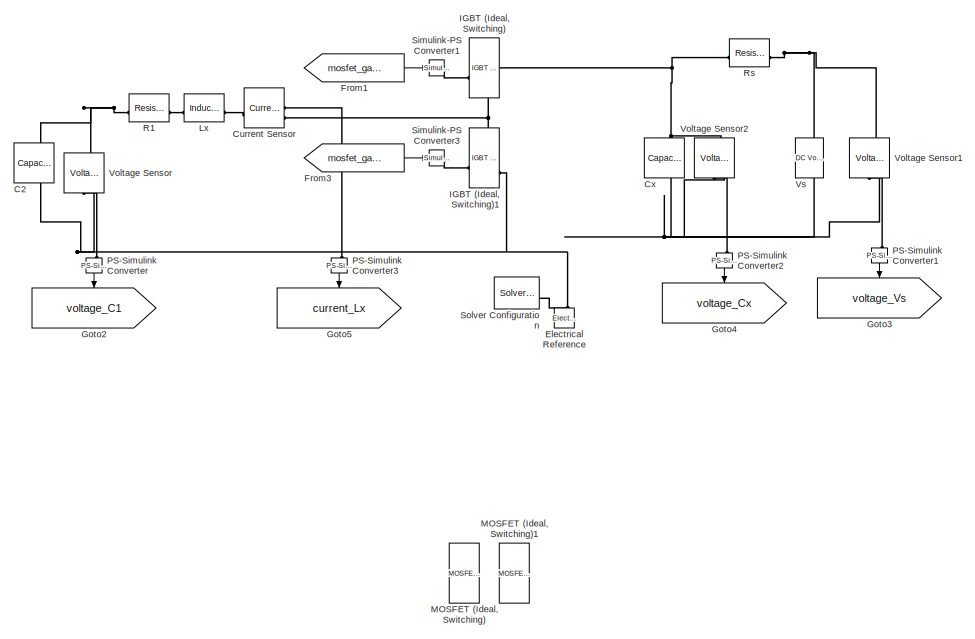
[diagram: root canvas - part 1/3, center side, full height]
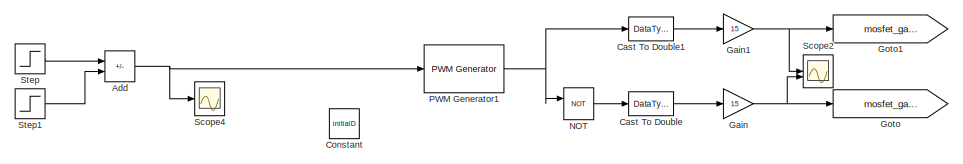
[diagram: root canvas - part 2/3, top left region]
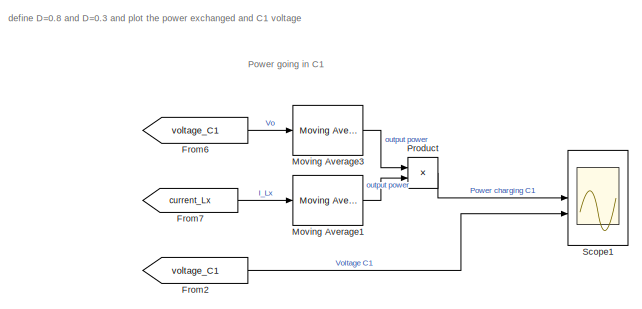
[diagram: root canvas - part 3/3, middle right region]
MODEL slx_b8bf80a27d0d
KIND model
CONFIG AbsTol = auto
CONFIG EnableMultiTasking = off
CONFIG FixedStep = auto
CONFIG MaxStep = auto
CONFIG MinStep = auto
CONFIG RelTol = 1e-3
CONFIG SampleTimeConstraint = Unconstrained
CONFIG SolverName = VariableStepAuto
CONFIG StartTime = 0.0
CONFIG StopTime = sim_time
BLOCK [Sum] Add
  IconShape = rectangular
  Inputs = +-
BLOCK [Reference] C2  REF=fl_lib/Electrical/Electrical Elements/Capacitor
  NameLocation = left
  SourceBlock = fl_lib/Electrical/Electrical Elements/Capacitor
  SourceType = Capacitor
BLOCK [DataTypeConversion] Cast To Double
  OutDataTypeStr = double
  RndMeth = Floor
  SaturateOnIntegerOverflow = off
BLOCK [DataTypeConversion] Cast To Double1
  OutDataTypeStr = double
  RndMeth = Floor
  SaturateOnIntegerOverflow = off
BLOCK [Constant] Constant
  Value = initialD
BLOCK [Reference] Current Sensor  REF=fl_lib/Electrical/Electrical Sensors/Current Sensor
  SourceBlock = fl_lib/Electrical/Electrical Sensors/Current Sensor
  SourceType = Current Sensor
BLOCK [Reference] Cx  REF=fl_lib/Electrical/Electrical Elements/Capacitor
  NameLocation = left
  SourceBlock = fl_lib/Electrical/Electrical Elements/Capacitor
  SourceType = Capacitor
BLOCK [Reference] Electrical Reference  REF=fl_lib/Electrical/Electrical Elements/Electrical Reference
  NameLocation = right
  SourceBlock = fl_lib/Electrical/Electrical Elements/Electrical Reference
  SourceType = Electrical Reference
BLOCK [From] From1
  GotoTag = mosfet_gate_1
BLOCK [From] From2
  GotoTag = voltage_C1
BLOCK [From] From3
  GotoTag = mosfet_gate_2
BLOCK [From] From6
  GotoTag = voltage_C1
BLOCK [From] From7
  GotoTag = current_Lx
BLOCK [Gain] Gain
  Gain = 15
BLOCK [Gain] Gain1
  Gain = 15
BLOCK [Goto] Goto
  GotoTag = mosfet_gate_2
BLOCK [Goto] Goto1
  GotoTag = mosfet_gate_1
BLOCK [Goto] Goto2
  GotoTag = voltage_C1
  NameLocation = left
BLOCK [Goto] Goto3
  GotoTag = voltage_Vs
  NameLocation = left
BLOCK [Goto] Goto4
  GotoTag = voltage_Cx
  NameLocation = left
BLOCK [Goto] Goto5
  GotoTag = current_Lx
  NameLocation = left
BLOCK [Reference] IGBT (Ideal, Switching)  REF=ee_lib/Semiconductors &
Converters/IGBT
(Ideal,
Switching)
  SourceBlock = ee_lib/Semiconductors &\nConverters/IGBT\n(Ideal,\nSwitching)
  SourceType = IGBT\n(Ideal,\nSwitching)
BLOCK [Reference] IGBT (Ideal, Switching)1  REF=ee_lib/Semiconductors &
Converters/IGBT
(Ideal,
Switching)
  SourceBlock = ee_lib/Semiconductors &\nConverters/IGBT\n(Ideal,\nSwitching)
  SourceType = IGBT\n(Ideal,\nSwitching)
BLOCK [Reference] Lx  REF=fl_lib/Electrical/Electrical Elements/Inductor
  NameLocation = top
  SourceBlock = fl_lib/Electrical/Electrical Elements/Inductor
  SourceType = Inductor
BLOCK [Reference] MOSFET (Ideal, Switching)  REF=ee_lib/Semiconductors &
Converters/MOSFET
(Ideal,
Switching)
  SourceBlock = ee_lib/Semiconductors &\nConverters/MOSFET\n(Ideal,\nSwitching)
  SourceType = MOSFET\n(Ideal,\nSwitching)
BLOCK [Reference] MOSFET (Ideal, Switching)1  REF=ee_lib/Semiconductors &
Converters/MOSFET
(Ideal,
Switching)
  SourceBlock = ee_lib/Semiconductors &\nConverters/MOSFET\n(Ideal,\nSwitching)
  SourceType = MOSFET\n(Ideal,\nSwitching)
BLOCK [Reference] Moving Average1  REF=eeGeneralControl/Moving Average
  LibrarySourceBlock = ee_sl_lib/General Control/Moving Average
  SourceBlock = eeGeneralControl/Moving Average
  SourceType = Moving Average
BLOCK [Reference] Moving Average3  REF=eeGeneralControl/Moving Average
  LibrarySourceBlock = ee_sl_lib/General Control/Moving Average
  SourceBlock = eeGeneralControl/Moving Average
  SourceType = Moving Average
BLOCK [Logic] NOT
  AllPortsSameDT = off
  IconShape = distinctive
  Operator = NOT
  OutDataTypeStr = boolean
BLOCK [Reference] PS-Simulink Converter  REF=nesl_utility/PS-Simulink
Converter
  NameLocation = left
  SourceBlock = nesl_utility/PS-Simulink\nConverter
  SourceType = PS-Simulink\nConverter
BLOCK [Reference] PS-Simulink Converter1  REF=nesl_utility/PS-Simulink
Converter
  NameLocation = left
  SourceBlock = nesl_utility/PS-Simulink\nConverter
  SourceType = PS-Simulink\nConverter
BLOCK [Reference] PS-Simulink Converter2  REF=nesl_utility/PS-Simulink
Converter
  NameLocation = left
  SourceBlock = nesl_utility/PS-Simulink\nConverter
  SourceType = PS-Simulink\nConverter
BLOCK [Reference] PS-Simulink Converter3  REF=nesl_utility/PS-Simulink
Converter
  NameLocation = left
  SourceBlock = nesl_utility/PS-Simulink\nConverter
  SourceType = PS-Simulink\nConverter
BLOCK [Reference] PWM Generator1  REF=eePwmGenerator/PWM Generator
  LibrarySourceBlock = ee_sl_lib/Pulse Width\nModulation/PWM Generator
  SourceBlock = eePwmGenerator/PWM Generator
  SourceType = PWM Generator
BLOCK [Product] Product
BLOCK [Reference] R1  REF=fl_lib/Electrical/Electrical Elements/Resistor
  NameLocation = top
  SourceBlock = fl_lib/Electrical/Electrical Elements/Resistor
  SourceType = Resistor
BLOCK [Reference] Rs  REF=fl_lib/Electrical/Electrical Elements/Resistor
  NameLocation = top
  SourceBlock = fl_lib/Electrical/Electrical Elements/Resistor
  SourceType = Resistor
BLOCK [Scope] Scope1
  Floating = off
  NumInputPorts = 2
  ScopeSpecificationString = Simulink.scopes.TimeScopeBlockCfg('CurrentConfiguration', extmgr.ConfigurationSet(extmgr.Configuration('Core','General UI',true),extmgr.Configuration('Core','Source UI',true),extmgr.Configuration('Sources','WiredSimulink',true,'DataLoggingVariableName','ScopeData2'),extmgr.Configuration('Visuals','Time Domain',true,'SerializedDisplays',{struct('MinYLimReal','-48476631.03656','MaxYLimReal','7072153...<+2096ch>
BLOCK [Scope] Scope2
  Floating = off
  NumInputPorts = 2
  ScopeSpecificationString = Simulink.scopes.TimeScopeBlockCfg('CurrentConfiguration', extmgr.ConfigurationSet(extmgr.Configuration('Core','General UI',true),extmgr.Configuration('Core','Source UI',true),extmgr.Configuration('Sources','WiredSimulink',true,'DataLoggingVariableName','ScopeData2'),extmgr.Configuration('Visuals','Time Domain',true,'SerializedDisplays',{struct('MinYLimReal','-0.625','MaxYLimReal','5.625','YLabelRe...<+2118ch>
BLOCK [Scope] Scope4
  Floating = off
  NumInputPorts = 1
  ScopeSpecificationString = Simulink.scopes.TimeScopeBlockCfg('CurrentConfiguration', extmgr.ConfigurationSet(extmgr.Configuration('Core','General UI',true),extmgr.Configuration('Core','Source UI',true),extmgr.Configuration('Sources','WiredSimulink',true,'DataLoggingVariableName','ScopeData3'),extmgr.Configuration('Visuals','Time Domain',true,'SerializedDisplays',{struct('MinYLimReal','0.2375','MaxYLimReal','0.8625','YLabelR...<+1502ch>
BLOCK [Reference] Simulink-PS Converter1  REF=nesl_utility/Simulink-PS
Converter
  SourceBlock = nesl_utility/Simulink-PS\nConverter
  SourceType = Simulink-PS\nConverter
BLOCK [Reference] Simulink-PS Converter3  REF=nesl_utility/Simulink-PS
Converter
  SourceBlock = nesl_utility/Simulink-PS\nConverter
  SourceType = Simulink-PS\nConverter
BLOCK [Reference] Solver Configuration  REF=nesl_utility/Solver
Configuration
  SourceBlock = nesl_utility/Solver\nConfiguration
  SourceType = Solver\nConfiguration
BLOCK [Step] Step
  After = firstD
  Before = initialD
  SampleTime = 0
  Time = first_step_time
BLOCK [Step] Step1
  After = firstD-secondD
  SampleTime = 0
  Time = second_step_time
BLOCK [Reference] Voltage Sensor  REF=fl_lib/Electrical/Electrical Sensors/Voltage Sensor
  NameLocation = left
  SourceBlock = fl_lib/Electrical/Electrical Sensors/Voltage Sensor
  SourceType = Voltage Sensor
BLOCK [Reference] Voltage Sensor1  REF=fl_lib/Electrical/Electrical Sensors/Voltage Sensor
  NameLocation = left
  SourceBlock = fl_lib/Electrical/Electrical Sensors/Voltage Sensor
  SourceType = Voltage Sensor
BLOCK [Reference] Voltage Sensor2  REF=fl_lib/Electrical/Electrical Sensors/Voltage Sensor
  NameLocation = left
  SourceBlock = fl_lib/Electrical/Electrical Sensors/Voltage Sensor
  SourceType = Voltage Sensor
BLOCK [Reference] Vs  REF=fl_lib/Electrical/Electrical Sources/DC Voltage Source
  NameLocation = right
  SourceBlock = fl_lib/Electrical/Electrical Sources/DC Voltage Source
  SourceType = DC Voltage Source
ANNOTATION (root): Power going in C1
ANNOTATION (root): define D=0.8 and D=0.3 and plot the power exchanged and C1 voltage
NET Add:1 -> PWM Generator1:1, Scope4:1
LINE Cast To Double1:1 -> Gain1:1
LINE Cast To Double:1 -> Gain:1
LINE From1:1 -> Simulink-PS Converter1:1
LINE From2:1 -> Scope1:2
LINE From3:1 -> Simulink-PS Converter3:1
LINE From6:1 -> Moving Average3:1
LINE From7:1 -> Moving Average1:1
NET Gain1:1 -> Goto1:1, Scope2:1
NET Gain:1 -> Goto:1, Scope2:2
LINE Moving Average1:1 -> Product:2
LINE Moving Average3:1 -> Product:1
LINE NOT:1 -> Cast To Double:1
LINE PS-Simulink Converter1:1 -> Goto3:1
LINE PS-Simulink Converter2:1 -> Goto4:1
LINE PS-Simulink Converter3:1 -> Goto5:1
LINE PS-Simulink Converter:1 -> Goto2:1
NET PWM Generator1:1 -> Cast To Double1:1, NOT:1
LINE Product:1 -> Scope1:1
LINE Step1:1 -> Add:2
LINE Step:1 -> Add:1
PNET net1: C2:LConn1 -- R1:RConn1 -- Voltage Sensor:LConn1
PNET net2: C2:RConn1 -- Cx:RConn1 -- Electrical Reference:LConn1 -- IGBT (Ideal, Switching)1:RConn2 -- Solver Configuration:RConn1 -- Voltage Sensor1:RConn2 -- Voltage Sensor2:RConn2 -- Voltage Sensor:RConn2 -- Vs:RConn1
PLINE Current Sensor:LConn1 -- Lx:RConn1
PLINE Current Sensor:RConn1 -- PS-Simulink Converter3:LConn1
PNET net3: Current Sensor:RConn2 -- IGBT (Ideal, Switching)1:RConn1 -- IGBT (Ideal, Switching):RConn2
PNET net4: Cx:LConn1 -- IGBT (Ideal, Switching):RConn1 -- Rs:RConn1 -- Voltage Sensor2:LConn1
PLINE IGBT (Ideal, Switching)1:LConn1 -- Simulink-PS Converter3:RConn1
PLINE IGBT (Ideal, Switching):LConn1 -- Simulink-PS Converter1:RConn1
PLINE Lx:LConn1 -- R1:LConn1
PLINE PS-Simulink Converter1:LConn1 -- Voltage Sensor1:RConn1
PLINE PS-Simulink Converter2:LConn1 -- Voltage Sensor2:RConn1
PLINE PS-Simulink Converter:LConn1 -- Voltage Sensor:RConn1
PNET net5: Rs:LConn1 -- Voltage Sensor1:LConn1 -- Vs:LConn1
note: NET lines group one-source signal fan-out (src -> all destinations, sorted); 1:1 wires keep LINE; PNET lines group multi-terminal physical nets as a canonical sorted terminal list (undirected conserving connections); 2-terminal nets keep the pairwise PLINE form
